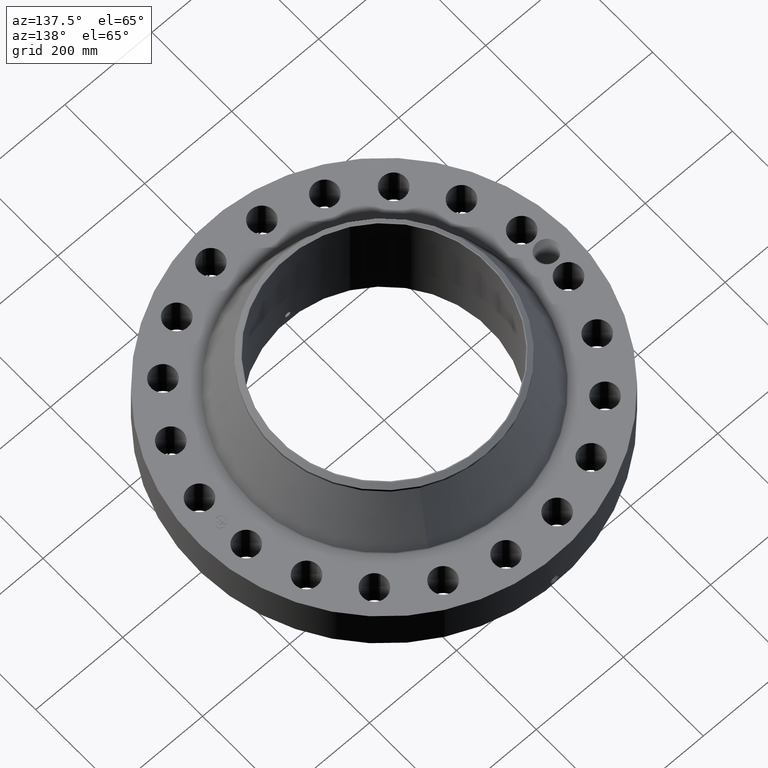
[diagram: clean part render]
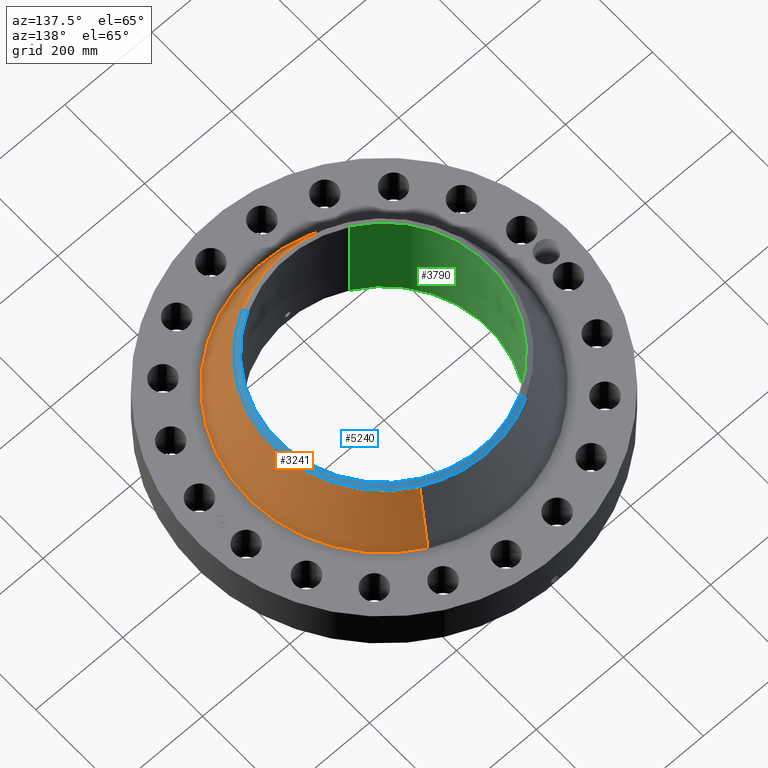
[diagram: same view with three faces highlighted in distinct colors, each labeled with its STEP entity id]
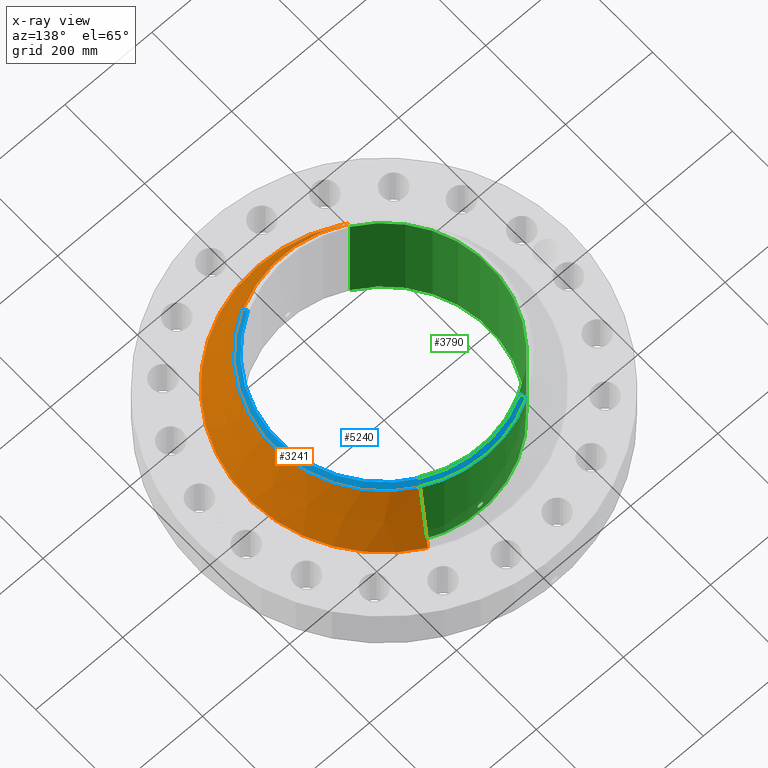
[diagram: x-ray of the same camera — body ghosted, the three highlighted faces saturated]
A machine part, auxiliary view with three faces highlighted in distinct colors.
The next image is the same camera in x-ray (body ghosted, the three faces saturated) — at least one of them is partly hidden behind the body in this view.
Their STEP definitions:

[orange] entity #3241 — the highlighted conical surface has half-angle 24.485 deg.
#2538=AXIS2_PLACEMENT_3D('Circle Axis2P3D',#2536,#2537,$) ;
#3214=AXIS2_PLACEMENT_3D('Cone Axis2P3D',#3211,#3212,#3213) ;
#3225=AXIS2_PLACEMENT_3D('Circle Axis2P3D',#3223,#3224,$) ;
#2533=CARTESIAN_POINT('Vertex',(5.85762134976,10.7223039592,4.57026484818)) ;
#2536=CARTESIAN_POINT('Axis2P3D Location',(0.,0.,4.57026484818)) ;
#2540=CARTESIAN_POINT('Vertex',(-5.85762134976,-10.7223039592,4.57026484818)) ;
#3211=CARTESIAN_POINT('Axis2P3D Location',(0.,0.,9.44053548148)) ;
#3216=CARTESIAN_POINT('Line Origine',(5.32593836791,9.74906478906,7.00540016483)) ;
#3220=CARTESIAN_POINT('Vertex',(4.79425538606,8.77582561894,9.44053548148)) ;
#3223=CARTESIAN_POINT('Axis2P3D Location',(0.,0.,9.44053548148)) ;
#3227=CARTESIAN_POINT('Vertex',(-4.79425538606,-8.77582561894,9.44053548148)) ;
#3230=CARTESIAN_POINT('Line Origine',(-5.32593836791,-9.74906478906,7.00540016483)) ;
#2537=DIRECTION('Axis2P3D Direction',(0.,0.,-0.0393700787402)) ;
#3212=DIRECTION('Axis2P3D Direction',(0.,0.,-0.0393700787402)) ;
#3213=DIRECTION('Axis2P3D XDirection',(-0.0188750212049,-0.0345504945626,0.)) ;
#3217=DIRECTION('Vector Direction',(0.00782293371329,0.0143197841099,-0.0358294374944)) ;
#3224=DIRECTION('Axis2P3D Direction',(0.,0.,-0.0393700787402)) ;
#3231=DIRECTION('Vector Direction',(-0.00782293371329,-0.0143197841099,-0.0358294374944)) ;
#3218=VECTOR('Line Direction',#3217,0.0393700787402) ;
#3232=VECTOR('Line Direction',#3231,0.0393700787402) ;
#3236=ORIENTED_EDGE('',*,*,#2542,.F.) ;
#3237=ORIENTED_EDGE('',*,*,#3222,.T.) ;
#3238=ORIENTED_EDGE('',*,*,#3229,.T.) ;
#3239=ORIENTED_EDGE('',*,*,#3234,.F.) ;
#3241=ADVANCED_FACE('PartBody',(#3240),#3215,.T.) ;
#2539=CIRCLE('generated circle',#2538,12.2180002484) ;
#3226=CIRCLE('generated circle',#3225,10.) ;
#3215=CONICAL_SURFACE('Cone',#3214,10.,0.427348919185) ;
#2542=EDGE_CURVE('',#2534,#2541,#2539,.T.) ;
#3222=EDGE_CURVE('',#2534,#3221,#3219,.F.) ;
#3229=EDGE_CURVE('',#3221,#3228,#3226,.T.) ;
#3234=EDGE_CURVE('',#2541,#3228,#3233,.F.) ;
#3235=EDGE_LOOP('',(#3236,#3237,#3238,#3239)) ;
#3240=FACE_OUTER_BOUND('',#3235,.T.) ;
#3219=LINE('Line',#3216,#3218) ;
#3233=LINE('Line',#3230,#3232) ;
#2534=VERTEX_POINT('',#2533) ;
#2541=VERTEX_POINT('',#2540) ;
#3221=VERTEX_POINT('',#3220) ;
#3228=VERTEX_POINT('',#3227) ;

[blue] entity #5240 — the highlighted conical surface has half-angle 52.5 deg.
#4043=AXIS2_PLACEMENT_3D('Circle Axis2P3D',#4041,#4042,$) ;
#4070=AXIS2_PLACEMENT_3D('Circle Axis2P3D',#4068,#4069,$) ;
#4856=AXIS2_PLACEMENT_3D('Circle Axis2P3D',#4854,#4855,$) ;
#5221=AXIS2_PLACEMENT_3D('Cone Axis2P3D',#5218,#5219,#5220) ;
#4038=CARTESIAN_POINT('Vertex',(4.79425538606,8.77582561894,9.67675595392)) ;
#4041=CARTESIAN_POINT('Axis2P3D Location',(0.,0.,9.67675595392)) ;
#4045=CARTESIAN_POINT('Vertex',(4.79425538606,-8.77582561894,9.67675595392)) ;
#4065=CARTESIAN_POINT('Vertex',(-4.79425538606,8.77582561894,9.67675595392)) ;
#4068=CARTESIAN_POINT('Axis2P3D Location',(0.,0.,9.67675595392)) ;
#4854=CARTESIAN_POINT('Axis2P3D Location',(0.,0.,10.)) ;
#4858=CARTESIAN_POINT('Vertex',(4.59229265917,-8.40613532712,10.)) ;
#4860=CARTESIAN_POINT('Vertex',(-4.59229265917,8.40613532712,10.)) ;
#5218=CARTESIAN_POINT('Axis2P3D Location',(0.,0.,10.)) ;
#5223=CARTESIAN_POINT('Line Origine',(-4.69327402261,8.59098047303,9.83837797698)) ;
#5228=CARTESIAN_POINT('Line Origine',(4.69327402261,-8.59098047303,9.83837797698)) ;
#4042=DIRECTION('Axis2P3D Direction',(0.,0.,-0.0393700787402)) ;
#4069=DIRECTION('Axis2P3D Direction',(0.,0.,-0.0393700787402)) ;
#4855=DIRECTION('Axis2P3D Direction',(0.,0.,-0.0393700787402)) ;
#5219=DIRECTION('Axis2P3D Direction',(-0.,-0.,-0.0393700787402)) ;
#5220=DIRECTION('Axis2P3D XDirection',(0.0188750212049,-0.0345504945626,0.)) ;
#5224=DIRECTION('Vector Direction',(-0.014974561121,0.02741075027,-0.023966985394)) ;
#5229=DIRECTION('Vector Direction',(0.014974561121,-0.02741075027,-0.023966985394)) ;
#5225=VECTOR('Line Direction',#5224,0.0393700787402) ;
#5230=VECTOR('Line Direction',#5229,0.0393700787402) ;
#5234=ORIENTED_EDGE('',*,*,#5227,.F.) ;
#5235=ORIENTED_EDGE('',*,*,#4862,.F.) ;
#5236=ORIENTED_EDGE('',*,*,#5232,.T.) ;
#5237=ORIENTED_EDGE('',*,*,#4047,.T.) ;
#5238=ORIENTED_EDGE('',*,*,#4072,.F.) ;
#5240=ADVANCED_FACE('PartBody',(#5239),#5222,.T.) ;
#4044=CIRCLE('generated circle',#4043,10.) ;
#4071=CIRCLE('generated circle',#4070,10.) ;
#4857=CIRCLE('generated circle',#4856,9.57874015752) ;
#5222=CONICAL_SURFACE('Cone',#5221,9.57874015752,0.916297857297) ;
#4047=EDGE_CURVE('',#4046,#4039,#4044,.F.) ;
#4072=EDGE_CURVE('',#4066,#4039,#4071,.T.) ;
#4862=EDGE_CURVE('',#4859,#4861,#4857,.F.) ;
#5227=EDGE_CURVE('',#4861,#4066,#5226,.T.) ;
#5232=EDGE_CURVE('',#4859,#4046,#5231,.T.) ;
#5233=EDGE_LOOP('',(#5234,#5235,#5236,#5237,#5238)) ;
#5239=FACE_OUTER_BOUND('',#5233,.T.) ;
#5226=LINE('Line',#5223,#5225) ;
#5231=LINE('Line',#5228,#5230) ;
#4039=VERTEX_POINT('',#4038) ;
#4046=VERTEX_POINT('',#4045) ;
#4066=VERTEX_POINT('',#4065) ;
#4859=VERTEX_POINT('',#4858) ;
#4861=VERTEX_POINT('',#4860) ;

[green] entity #3790 — the highlighted cylindrical surface (partial cylindrical patch) has radius 241.3 mm, axis along (0, 0, -1).
#2921=AXIS2_PLACEMENT_3D('Circle Axis2P3D',#2919,#2920,$) ;
#3667=AXIS2_PLACEMENT_3D('Cylinder Axis2P3D',#3664,#3665,#3666) ;
#3739=AXIS2_PLACEMENT_3D('Circle Axis2P3D',#3737,#3738,$) ;
#2914=CARTESIAN_POINT('Vertex',(4.55454261676,8.33703433799,-5.87456592558E-014)) ;
#2916=CARTESIAN_POINT('Vertex',(-4.55454261676,-8.33703433799,-5.87456592558E-014)) ;
#2919=CARTESIAN_POINT('Axis2P3D Location',(0.,0.,0.)) ;
#3664=CARTESIAN_POINT('Axis2P3D Location',(0.,0.,5.00000000002)) ;
#3673=CARTESIAN_POINT('Vertex',(4.55454261676,8.33703433799,10.)) ;
#3675=CARTESIAN_POINT('Vertex',(-4.55454261676,-8.33703433799,10.)) ;
#3678=CARTESIAN_POINT('Line Origine',(4.55454261676,8.33703433799,5.00000000002)) ;
#3683=CARTESIAN_POINT('Line Origine',(-4.55454261676,-8.33703433799,5.00000000002)) ;
#3737=CARTESIAN_POINT('Axis2P3D Location',(0.,0.,10.)) ;
#3749=CARTESIAN_POINT('Control Point',(0.219395640473,9.4974662702,1.05985638466)) ;
#3750=CARTESIAN_POINT('Control Point',(0.194442936004,9.49804268863,1.10553200381)) ;
#3751=CARTESIAN_POINT('Control Point',(0.157604874731,9.49881167245,1.14471210687)) ;
#3752=CARTESIAN_POINT('Control Point',(0.111106986326,9.49955955235,1.17324351809)) ;
#3753=CARTESIAN_POINT('Control Point',(0.0336717783068,9.50015458293,1.19588281263)) ;
#3754=CARTESIAN_POINT('Control Point',(-0.0446730370345,9.49994894621,1.18805610377)) ;
#3755=CARTESIAN_POINT('Control Point',(-0.0703033492332,9.49978931029,1.18204313534)) ;
#3756=CARTESIAN_POINT('Control Point',(-0.143960170606,9.49908388344,1.15420983011)) ;
#3757=CARTESIAN_POINT('Control Point',(-0.203248205492,9.49793246426,1.09949287883)) ;
#3758=CARTESIAN_POINT('Control Point',(-0.232212656312,9.4971773108,1.05325204767)) ;
#3759=CARTESIAN_POINT('Control Point',(-0.255841020195,9.49655659169,0.975105963709)) ;
#3760=CARTESIAN_POINT('Control Point',(-0.24828187603,9.49675500838,0.895743006064)) ;
#3761=CARTESIAN_POINT('Control Point',(-0.242048121009,9.49692100883,0.869181965435)) ;
#3762=CARTESIAN_POINT('Control Point',(-0.232314918729,9.4971678292,0.843792195572)) ;
#3763=CARTESIAN_POINT('Control Point',(-0.219395640473,9.4974662702,0.820143615352)) ;
#3764=CARTESIAN_POINT('Vertex',(0.219395640473,9.4974662702,1.05985638466)) ;
#3766=CARTESIAN_POINT('Vertex',(-0.219395640473,9.4974662702,0.820143615352)) ;
#3770=CARTESIAN_POINT('Control Point',(-0.219395640473,9.4974662702,0.820143615352)) ;
#3771=CARTESIAN_POINT('Control Point',(-0.194442935986,9.49804268863,0.774467996164)) ;
#3772=CARTESIAN_POINT('Control Point',(-0.157604874679,9.49881167245,0.735287893083)) ;
#3773=CARTESIAN_POINT('Control Point',(-0.111106986401,9.49955955235,0.706756481942)) ;
#3774=CARTESIAN_POINT('Control Point',(-0.0336717783475,9.50015458293,0.68411718737)) ;
#3775=CARTESIAN_POINT('Control Point',(0.0446730370292,9.49994894621,0.691943896234)) ;
#3776=CARTESIAN_POINT('Control Point',(0.0703033492341,9.49978931029,0.697956864669)) ;
#3777=CARTESIAN_POINT('Control Point',(0.143960170554,9.49908388344,0.725790169881)) ;
#3778=CARTESIAN_POINT('Control Point',(0.203248205407,9.49793246426,0.780507121096)) ;
#3779=CARTESIAN_POINT('Control Point',(0.232212656344,9.4971773108,0.826747952445)) ;
#3780=CARTESIAN_POINT('Control Point',(0.255841020165,9.49655659169,0.904894036273)) ;
#3781=CARTESIAN_POINT('Control Point',(0.248281876046,9.49675500837,0.984256993781)) ;
#3782=CARTESIAN_POINT('Control Point',(0.242048120951,9.49692100883,1.01081803472)) ;
#3783=CARTESIAN_POINT('Control Point',(0.23231491869,9.49716782921,1.03620780451)) ;
#3784=CARTESIAN_POINT('Control Point',(0.219395640473,9.4974662702,1.05985638466)) ;
#2920=DIRECTION('Axis2P3D Direction',(0.,0.,-0.0393700787402)) ;
#3665=DIRECTION('Axis2P3D Direction',(0.,0.,-0.0393700787402)) ;
#3666=DIRECTION('Axis2P3D XDirection',(-0.0188750212049,-0.0345504945626,0.)) ;
#3679=DIRECTION('Vector Direction',(0.,0.,-0.0393700787402)) ;
#3684=DIRECTION('Vector Direction',(0.,0.,-0.0393700787402)) ;
#3738=DIRECTION('Axis2P3D Direction',(0.,0.,-0.0393700787402)) ;
#3680=VECTOR('Line Direction',#3679,0.0393700787402) ;
#3685=VECTOR('Line Direction',#3684,0.0393700787402) ;
#3743=ORIENTED_EDGE('',*,*,#3741,.F.) ;
#3744=ORIENTED_EDGE('',*,*,#3687,.T.) ;
#3745=ORIENTED_EDGE('',*,*,#2923,.T.) ;
#3746=ORIENTED_EDGE('',*,*,#3682,.F.) ;
#3787=ORIENTED_EDGE('',*,*,#3768,.F.) ;
#3788=ORIENTED_EDGE('',*,*,#3785,.F.) ;
#3789=FACE_BOUND('',#3786,.T.) ;
#3790=ADVANCED_FACE('PartBody',(#3747,#3789),#3668,.F.) ;
#3748=B_SPLINE_CURVE_WITH_KNOTS('',5,(#3749,#3750,#3751,#3752,#3753,#3754,#3755,#3756,#3757,#3758,#3759,#3760,#3761,#3762,#3763),.UNSPECIFIED.,.F.,.U.,(6,3,3,3,6),(0.,9.34849735272,14.0229160392,23.3729561963,28.2131465136),.UNSPECIFIED.) ;
#3769=B_SPLINE_CURVE_WITH_KNOTS('',5,(#3770,#3771,#3772,#3773,#3774,#3775,#3776,#3777,#3778,#3779,#3780,#3781,#3782,#3783,#3784),.UNSPECIFIED.,.F.,.U.,(6,3,3,3,6),(0.,9.34849735931,14.0229160455,23.3729561927,28.2131464958),.UNSPECIFIED.) ;
#2922=CIRCLE('generated circle',#2921,9.50000000004) ;
#3740=CIRCLE('generated circle',#3739,9.50000000004) ;
#3668=CYLINDRICAL_SURFACE('generated cylinder',#3667,9.50000000004) ;
#2923=EDGE_CURVE('',#2917,#2915,#2922,.T.) ;
#3682=EDGE_CURVE('',#3674,#2915,#3681,.T.) ;
#3687=EDGE_CURVE('',#3676,#2917,#3686,.T.) ;
#3741=EDGE_CURVE('',#3676,#3674,#3740,.T.) ;
#3768=EDGE_CURVE('',#3765,#3767,#3748,.T.) ;
#3785=EDGE_CURVE('',#3767,#3765,#3769,.T.) ;
#3742=EDGE_LOOP('',(#3743,#3744,#3745,#3746)) ;
#3786=EDGE_LOOP('',(#3787,#3788)) ;
#3747=FACE_OUTER_BOUND('',#3742,.T.) ;
#3681=LINE('Line',#3678,#3680) ;
#3686=LINE('Line',#3683,#3685) ;
#2915=VERTEX_POINT('',#2914) ;
#2917=VERTEX_POINT('',#2916) ;
#3674=VERTEX_POINT('',#3673) ;
#3676=VERTEX_POINT('',#3675) ;
#3765=VERTEX_POINT('',#3764) ;
#3767=VERTEX_POINT('',#3766) ;